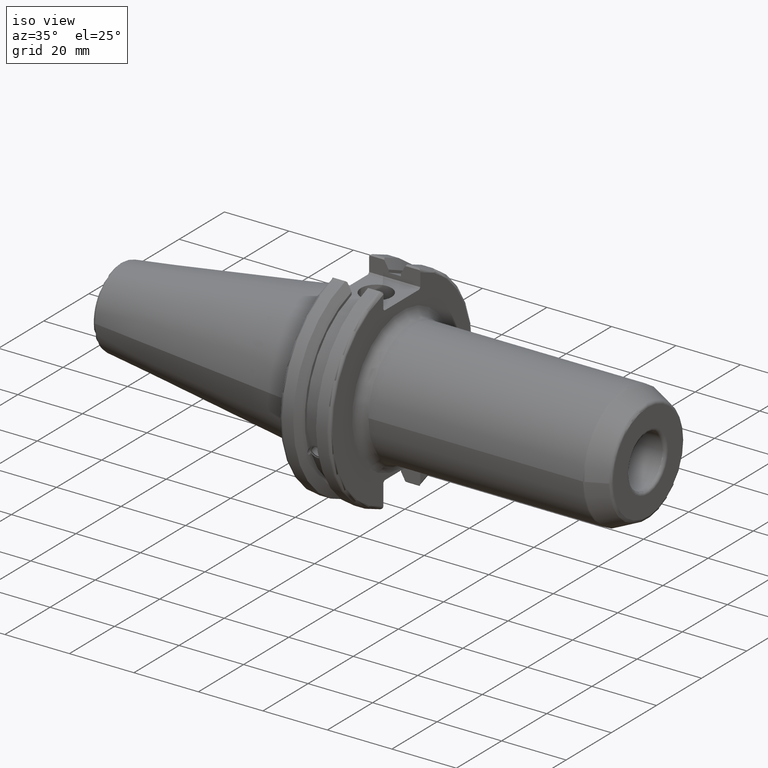
[diagram: clean part render]
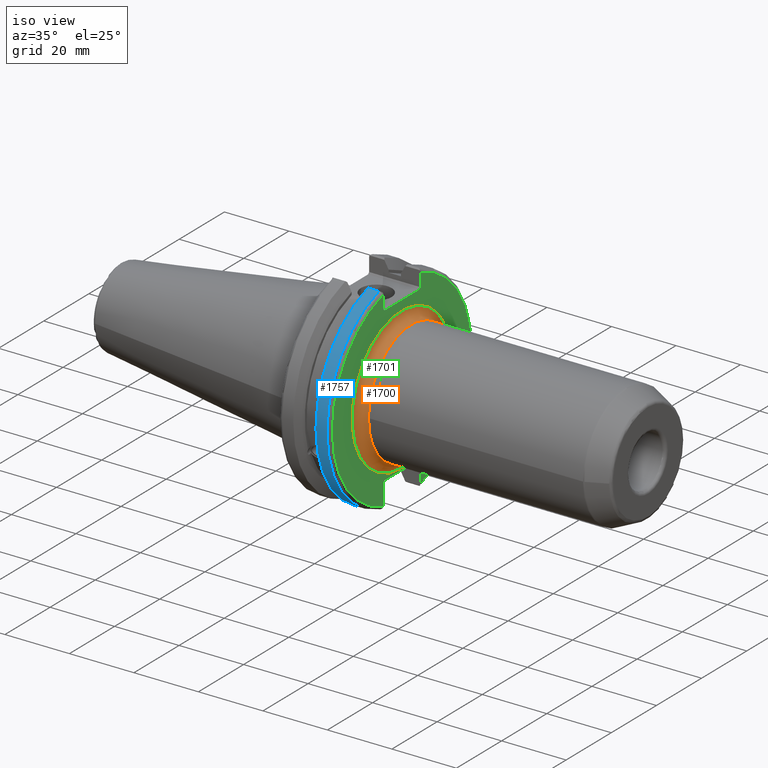
[diagram: same view with three faces highlighted in distinct colors, each labeled with its STEP entity id]
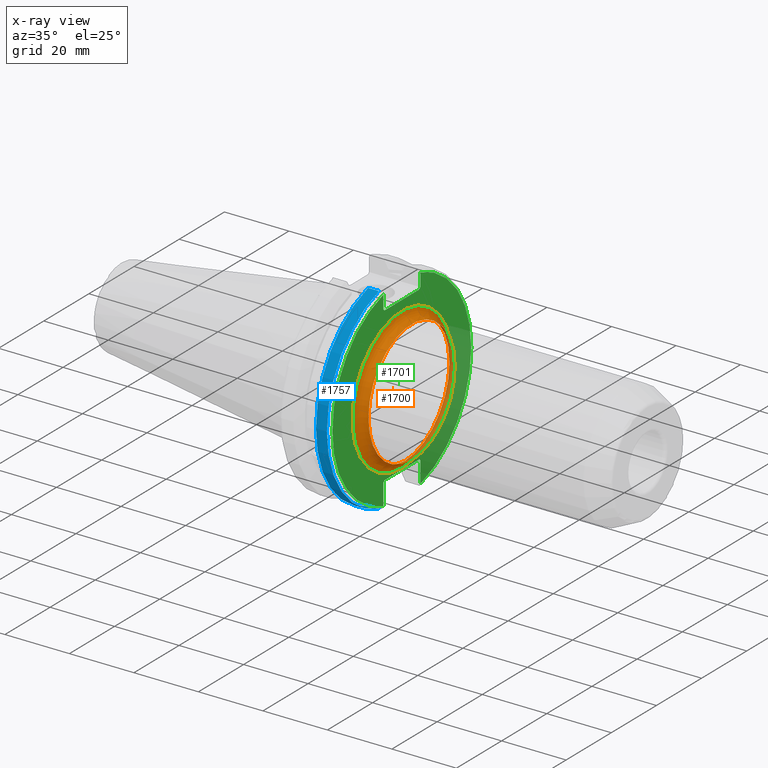
[diagram: x-ray of the same camera — body ghosted, the three highlighted faces saturated]
A machine part, iso view with three faces highlighted in distinct colors.
The next image is the same camera in x-ray (body ghosted, the three faces saturated) — at least one of them is partly hidden behind the body in this view.
Their STEP definitions:

[orange] entity #1700 — the highlighted toroidal blend (fillet) surface has major radius 22.05 mm and minor (blend) radius 3 mm.
#52=TOROIDAL_SURFACE('',#1836,22.05,3.);
#138=FACE_OUTER_BOUND('',#230,.T.);
#230=EDGE_LOOP('',(#1187,#1188,#1189,#1190,#1191,#1192,#1193));
#566=CIRCLE('',#1833,19.05);
#567=CIRCLE('',#1834,19.05);
#568=CIRCLE('',#1835,19.05);
#569=CIRCLE('',#1837,3.);
#570=CIRCLE('',#1838,22.05);
#571=CIRCLE('',#1839,22.05);
#679=VERTEX_POINT('',#2684);
#680=VERTEX_POINT('',#2686);
#681=VERTEX_POINT('',#2688);
#682=VERTEX_POINT('',#2692);
#683=VERTEX_POINT('',#2694);
#880=EDGE_CURVE('',#680,#679,#566,.T.);
#881=EDGE_CURVE('',#681,#680,#567,.T.);
#882=EDGE_CURVE('',#679,#681,#568,.T.);
#883=EDGE_CURVE('',#680,#682,#569,.T.);
#884=EDGE_CURVE('',#682,#683,#570,.T.);
#885=EDGE_CURVE('',#683,#682,#571,.T.);
#1187=ORIENTED_EDGE('',*,*,#881,.T.);
#1188=ORIENTED_EDGE('',*,*,#883,.T.);
#1189=ORIENTED_EDGE('',*,*,#884,.T.);
#1190=ORIENTED_EDGE('',*,*,#885,.T.);
#1191=ORIENTED_EDGE('',*,*,#883,.F.);
#1192=ORIENTED_EDGE('',*,*,#880,.T.);
#1193=ORIENTED_EDGE('',*,*,#882,.T.);
#1700=ADVANCED_FACE('',(#138),#52,.F.);
#1833=AXIS2_PLACEMENT_3D('',#2687,#2093,#2094);
#1834=AXIS2_PLACEMENT_3D('',#2689,#2095,#2096);
#1835=AXIS2_PLACEMENT_3D('',#2690,#2097,#2098);
#1836=AXIS2_PLACEMENT_3D('',#2691,#2099,#2100);
#1837=AXIS2_PLACEMENT_3D('',#2693,#2101,#2102);
#1838=AXIS2_PLACEMENT_3D('',#2695,#2103,#2104);
#1839=AXIS2_PLACEMENT_3D('',#2696,#2105,#2106);
#2093=DIRECTION('center_axis',(-1.,0.,0.));
#2094=DIRECTION('ref_axis',(0.,-1.,-1.22464679914735E-16));
#2095=DIRECTION('center_axis',(-1.,0.,0.));
#2096=DIRECTION('ref_axis',(0.,-1.,-1.22464679914735E-16));
#2097=DIRECTION('center_axis',(-1.,0.,0.));
#2098=DIRECTION('ref_axis',(0.,-1.,-1.22464679914735E-16));
#2099=DIRECTION('center_axis',(-1.,0.,0.));
#2100=DIRECTION('ref_axis',(0.,0.,1.));
#2101=DIRECTION('center_axis',(0.,-1.,1.22464679914735E-16));
#2102=DIRECTION('ref_axis',(0.,-1.22464679914735E-16,-1.));
#2103=DIRECTION('center_axis',(1.,0.,0.));
#2104=DIRECTION('ref_axis',(0.,-1.,-1.22464679914735E-16));
#2105=DIRECTION('center_axis',(1.,0.,0.));
#2106=DIRECTION('ref_axis',(0.,-1.,-1.22464679914735E-16));
#2684=CARTESIAN_POINT('',(22.05,-19.05,-2.33295215237571E-15));
#2686=CARTESIAN_POINT('',(22.05,-2.33295215237571E-15,-19.05));
#2687=CARTESIAN_POINT('Origin',(22.05,0.,0.));
#2688=CARTESIAN_POINT('',(22.05,19.05,0.));
#2689=CARTESIAN_POINT('Origin',(22.05,0.,0.));
#2690=CARTESIAN_POINT('Origin',(22.05,0.,0.));
#2691=CARTESIAN_POINT('Origin',(22.05,0.,0.));
#2692=CARTESIAN_POINT('',(19.05,-2.70034619211991E-15,-22.05));
#2693=CARTESIAN_POINT('Origin',(22.05,-2.70034619211991E-15,-22.05));
#2694=CARTESIAN_POINT('',(19.05,22.05,5.40069238423983E-15));
#2695=CARTESIAN_POINT('Origin',(19.05,0.,0.));
#2696=CARTESIAN_POINT('Origin',(19.05,0.,0.));

[blue] entity #1757 — the highlighted cylindrical surface (partial cylindrical patch) has radius 31.75 mm, axis along (1, 0, 0).
#195=FACE_OUTER_BOUND('',#300,.T.);
#300=EDGE_LOOP('',(#1560,#1561,#1562,#1563));
#440=LINE('',#3414,#532);
#441=LINE('',#3416,#533);
#532=VECTOR('',#2465,10.);
#533=VECTOR('',#2468,10.);
#591=CIRCLE('',#1882,31.75);
#624=CIRCLE('',#1948,31.75);
#735=VERTEX_POINT('',#2946);
#736=VERTEX_POINT('',#2950);
#807=VERTEX_POINT('',#3249);
#808=VERTEX_POINT('',#3258);
#947=EDGE_CURVE('',#736,#735,#591,.T.);
#1043=EDGE_CURVE('',#807,#808,#624,.T.);
#1093=EDGE_CURVE('',#808,#735,#440,.T.);
#1094=EDGE_CURVE('',#736,#807,#441,.T.);
#1560=ORIENTED_EDGE('',*,*,#1043,.F.);
#1561=ORIENTED_EDGE('',*,*,#1094,.F.);
#1562=ORIENTED_EDGE('',*,*,#947,.T.);
#1563=ORIENTED_EDGE('',*,*,#1093,.F.);
#1683=CYLINDRICAL_SURFACE('',#1980,31.75);
#1757=ADVANCED_FACE('',(#195),#1683,.T.);
#1882=AXIS2_PLACEMENT_3D('',#2951,#2213,#2214);
#1948=AXIS2_PLACEMENT_3D('',#3259,#2378,#2379);
#1980=AXIS2_PLACEMENT_3D('',#3415,#2466,#2467);
#2213=DIRECTION('center_axis',(1.,0.,0.));
#2214=DIRECTION('ref_axis',(0.,0.,-1.));
#2378=DIRECTION('center_axis',(1.,0.,0.));
#2379=DIRECTION('ref_axis',(0.,-1.,1.60812264967664E-16));
#2465=DIRECTION('',(-1.,0.,0.));
#2466=DIRECTION('center_axis',(1.,0.,0.));
#2467=DIRECTION('ref_axis',(0.,-1.,1.22464679914735E-16));
#2468=DIRECTION('',(1.,0.,0.));
#2946=CARTESIAN_POINT('',(14.6602667690756,-8.67204822802686,-30.5427254764662));
#2950=CARTESIAN_POINT('',(14.6602667690756,-8.67204822802685,30.5427254764662));
#2951=CARTESIAN_POINT('Origin',(14.6602667690756,0.,0.));
#3249=CARTESIAN_POINT('',(18.05,-8.67204822802685,30.5427254764662));
#3258=CARTESIAN_POINT('',(18.05,-8.67204822802686,-30.5427254764662));
#3259=CARTESIAN_POINT('Origin',(18.05,0.,0.));
#3414=CARTESIAN_POINT('',(16.8551333845378,-8.67204822802686,-30.5427254764662));
#3415=CARTESIAN_POINT('Origin',(16.8551333845378,0.,0.));
#3416=CARTESIAN_POINT('',(16.8551333845378,-8.67204822802685,30.5427254764662));

[green] entity #1701 — the highlighted planar face has unit normal (1, 0, 0).
#63=FACE_BOUND('',#232,.T.);
#80=PLANE('',#1840);
#139=FACE_OUTER_BOUND('',#231,.T.);
#231=EDGE_LOOP('',(#1194,#1195,#1196,#1197,#1198,#1199,#1200,#1201,#1202,
#1203,#1204,#1205));
#232=EDGE_LOOP('',(#1206,#1207));
#362=LINE('',#2702,#454);
#363=LINE('',#2704,#455);
#364=LINE('',#2706,#456);
#365=LINE('',#2708,#457);
#366=LINE('',#2710,#458);
#367=LINE('',#2714,#459);
#368=LINE('',#2716,#460);
#369=LINE('',#2718,#461);
#370=LINE('',#2720,#462);
#371=LINE('',#2721,#463);
#454=VECTOR('',#2111,10.);
#455=VECTOR('',#2112,10.);
#456=VECTOR('',#2113,10.);
#457=VECTOR('',#2114,10.);
#458=VECTOR('',#2115,10.);
#459=VECTOR('',#2118,10.);
#460=VECTOR('',#2119,10.);
#461=VECTOR('',#2120,10.);
#462=VECTOR('',#2121,10.);
#463=VECTOR('',#2122,10.);
#570=CIRCLE('',#1838,22.05);
#571=CIRCLE('',#1839,22.05);
#572=CIRCLE('',#1841,30.75);
#573=CIRCLE('',#1842,30.75);
#682=VERTEX_POINT('',#2692);
#683=VERTEX_POINT('',#2694);
#684=VERTEX_POINT('',#2698);
#685=VERTEX_POINT('',#2699);
#686=VERTEX_POINT('',#2701);
#687=VERTEX_POINT('',#2703);
#688=VERTEX_POINT('',#2705);
#689=VERTEX_POINT('',#2707);
#690=VERTEX_POINT('',#2709);
#691=VERTEX_POINT('',#2711);
#692=VERTEX_POINT('',#2713);
#693=VERTEX_POINT('',#2715);
#694=VERTEX_POINT('',#2717);
#695=VERTEX_POINT('',#2719);
#884=EDGE_CURVE('',#682,#683,#570,.T.);
#885=EDGE_CURVE('',#683,#682,#571,.T.);
#886=EDGE_CURVE('',#684,#685,#572,.T.);
#887=EDGE_CURVE('',#684,#686,#362,.T.);
#888=EDGE_CURVE('',#687,#686,#363,.T.);
#889=EDGE_CURVE('',#687,#688,#364,.T.);
#890=EDGE_CURVE('',#689,#688,#365,.T.);
#891=EDGE_CURVE('',#689,#690,#366,.T.);
#892=EDGE_CURVE('',#691,#690,#573,.T.);
#893=EDGE_CURVE('',#691,#692,#367,.T.);
#894=EDGE_CURVE('',#693,#692,#368,.T.);
#895=EDGE_CURVE('',#693,#694,#369,.T.);
#896=EDGE_CURVE('',#695,#694,#370,.T.);
#897=EDGE_CURVE('',#695,#685,#371,.T.);
#1194=ORIENTED_EDGE('',*,*,#886,.F.);
#1195=ORIENTED_EDGE('',*,*,#887,.T.);
#1196=ORIENTED_EDGE('',*,*,#888,.F.);
#1197=ORIENTED_EDGE('',*,*,#889,.T.);
#1198=ORIENTED_EDGE('',*,*,#890,.F.);
#1199=ORIENTED_EDGE('',*,*,#891,.T.);
#1200=ORIENTED_EDGE('',*,*,#892,.F.);
#1201=ORIENTED_EDGE('',*,*,#893,.T.);
#1202=ORIENTED_EDGE('',*,*,#894,.F.);
#1203=ORIENTED_EDGE('',*,*,#895,.T.);
#1204=ORIENTED_EDGE('',*,*,#896,.F.);
#1205=ORIENTED_EDGE('',*,*,#897,.T.);
#1206=ORIENTED_EDGE('',*,*,#885,.F.);
#1207=ORIENTED_EDGE('',*,*,#884,.F.);
#1701=ADVANCED_FACE('',(#139,#63),#80,.T.);
#1838=AXIS2_PLACEMENT_3D('',#2695,#2103,#2104);
#1839=AXIS2_PLACEMENT_3D('',#2696,#2105,#2106);
#1840=AXIS2_PLACEMENT_3D('',#2697,#2107,#2108);
#1841=AXIS2_PLACEMENT_3D('',#2700,#2109,#2110);
#1842=AXIS2_PLACEMENT_3D('',#2712,#2116,#2117);
#2103=DIRECTION('center_axis',(1.,0.,0.));
#2104=DIRECTION('ref_axis',(0.,-1.,-1.22464679914735E-16));
#2105=DIRECTION('center_axis',(1.,0.,0.));
#2106=DIRECTION('ref_axis',(0.,-1.,-1.22464679914735E-16));
#2107=DIRECTION('center_axis',(1.,0.,0.));
#2108=DIRECTION('ref_axis',(0.,0.,-1.));
#2109=DIRECTION('center_axis',(-1.,0.,0.));
#2110=DIRECTION('ref_axis',(0.,1.,-6.12323399573677E-17));
#2111=DIRECTION('',(0.,0.,-1.));
#2112=DIRECTION('',(0.,0.707106781186549,0.707106781186546));
#2113=DIRECTION('',(0.,-1.,0.));
#2114=DIRECTION('',(0.,0.70710678118655,-0.707106781186545));
#2115=DIRECTION('',(0.,0.,1.));
#2116=DIRECTION('center_axis',(-1.,0.,0.));
#2117=DIRECTION('ref_axis',(0.,-1.,1.60812264967664E-16));
#2118=DIRECTION('',(0.,0.,1.));
#2119=DIRECTION('',(0.,-0.707106781186549,-0.707106781186546));
#2120=DIRECTION('',(0.,1.,0.));
#2121=DIRECTION('',(0.,-0.707106781186549,0.707106781186546));
#2122=DIRECTION('',(0.,0.,-1.));
#2692=CARTESIAN_POINT('',(19.05,-2.70034619211991E-15,-22.05));
#2694=CARTESIAN_POINT('',(19.05,22.05,5.40069238423983E-15));
#2695=CARTESIAN_POINT('Origin',(19.05,0.,0.));
#2696=CARTESIAN_POINT('Origin',(19.05,0.,0.));
#2697=CARTESIAN_POINT('Origin',(19.05,0.,0.));
#2698=CARTESIAN_POINT('',(19.05,8.19,29.6392712461019));
#2699=CARTESIAN_POINT('',(19.05,8.19,-29.6392712461019));
#2700=CARTESIAN_POINT('Origin',(19.05,0.,0.));
#2701=CARTESIAN_POINT('',(19.05,8.19,25.5));
#2702=CARTESIAN_POINT('',(19.05,8.19,12.5));
#2703=CARTESIAN_POINT('',(19.05,7.69,25.));
#2704=CARTESIAN_POINT('',(19.05,-0.35750000000001,16.9525));
#2705=CARTESIAN_POINT('',(19.05,-7.69,25.));
#2706=CARTESIAN_POINT('',(19.05,0.,25.));
#2707=CARTESIAN_POINT('',(19.05,-8.19,25.5));
#2708=CARTESIAN_POINT('',(19.05,0.357500000000014,16.9525));
#2709=CARTESIAN_POINT('',(19.05,-8.19,29.6392712461019));
#2710=CARTESIAN_POINT('',(19.05,-8.19,12.5));
#2711=CARTESIAN_POINT('',(19.05,-8.19,-29.6392712461019));
#2712=CARTESIAN_POINT('Origin',(19.05,0.,0.));
#2713=CARTESIAN_POINT('',(19.05,-8.19,-23.1));
#2714=CARTESIAN_POINT('',(19.05,-8.19,-11.3));
#2715=CARTESIAN_POINT('',(19.05,-7.69,-22.6));
#2716=CARTESIAN_POINT('',(19.05,-0.242499999999991,-15.1525));
#2717=CARTESIAN_POINT('',(19.05,7.69,-22.6));
#2718=CARTESIAN_POINT('',(19.05,-2.77555756156289E-16,-22.6));
#2719=CARTESIAN_POINT('',(19.05,8.19,-23.1));
#2720=CARTESIAN_POINT('',(19.05,0.242499999999989,-15.1525));
#2721=CARTESIAN_POINT('',(19.05,8.19,-11.3));